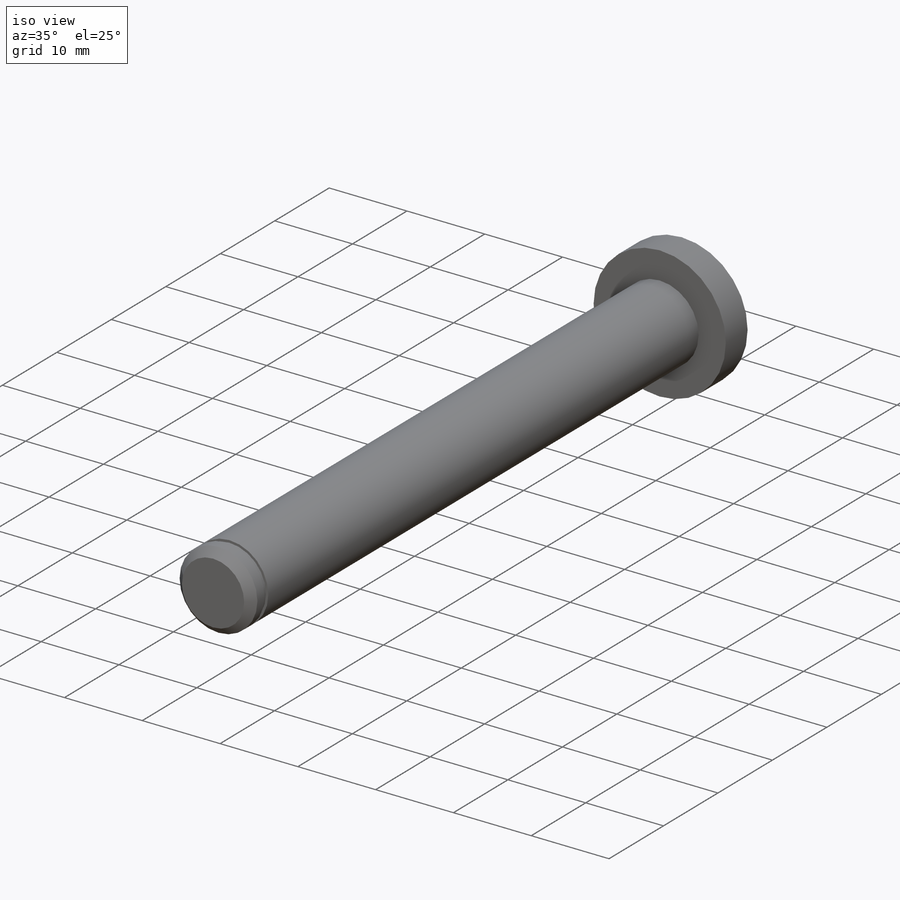
[diagram: iso view]
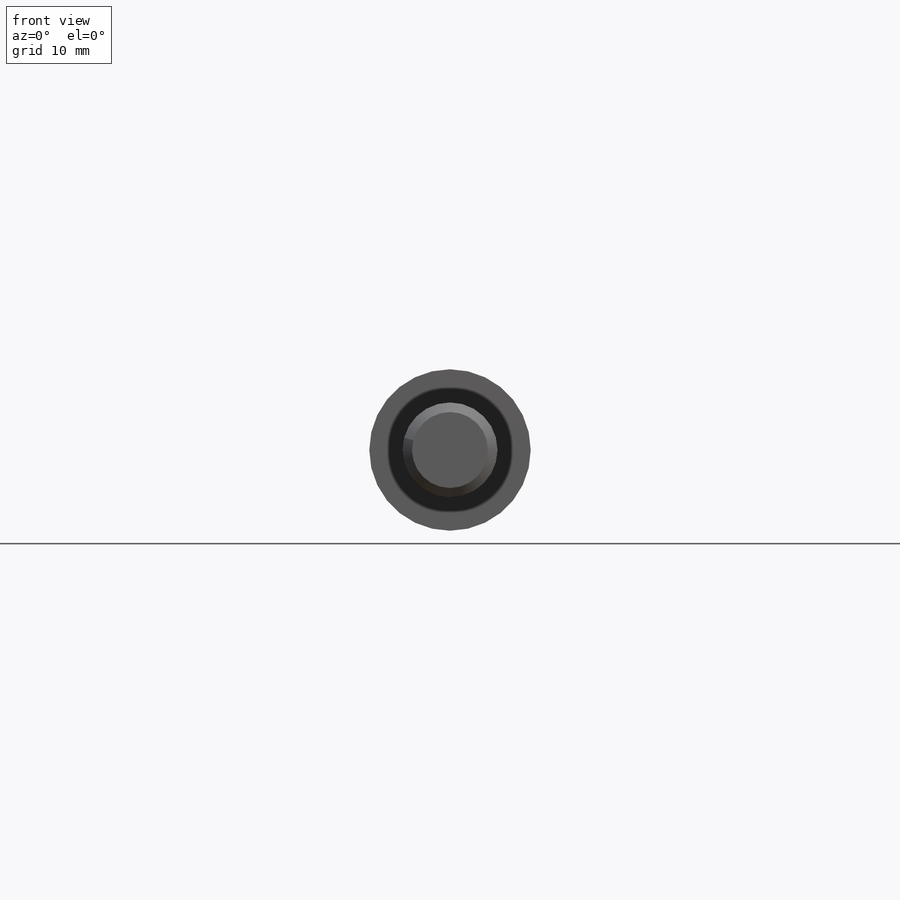
[diagram: front view]
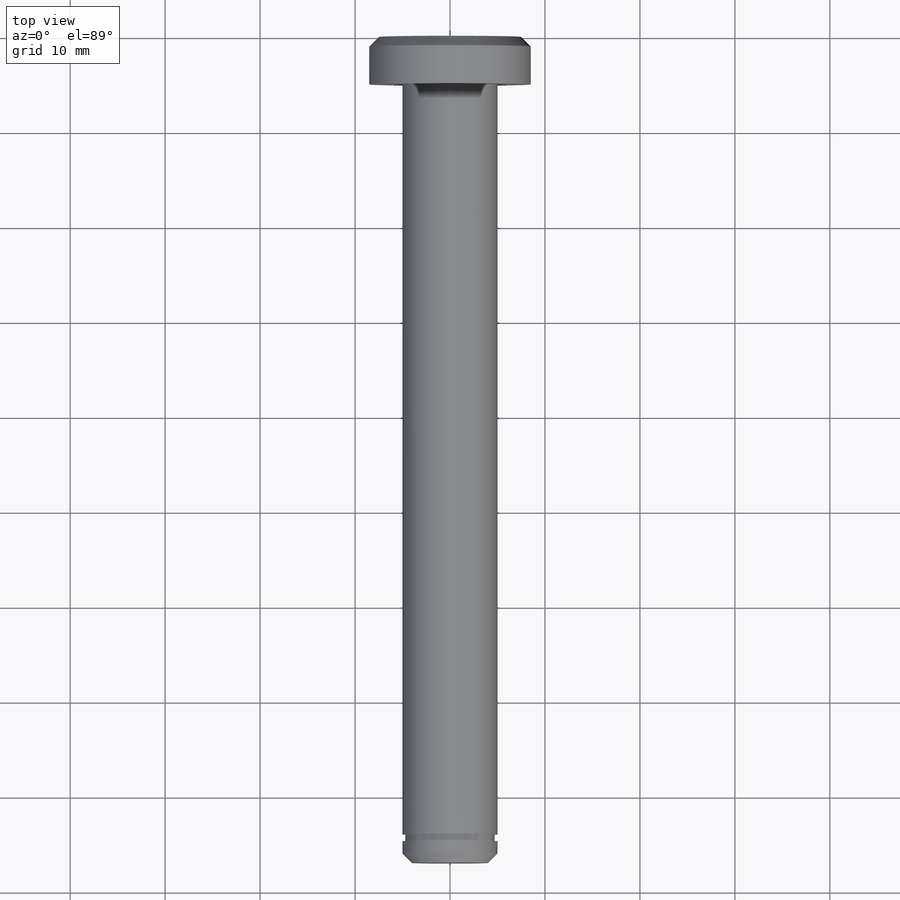
[diagram: top view]
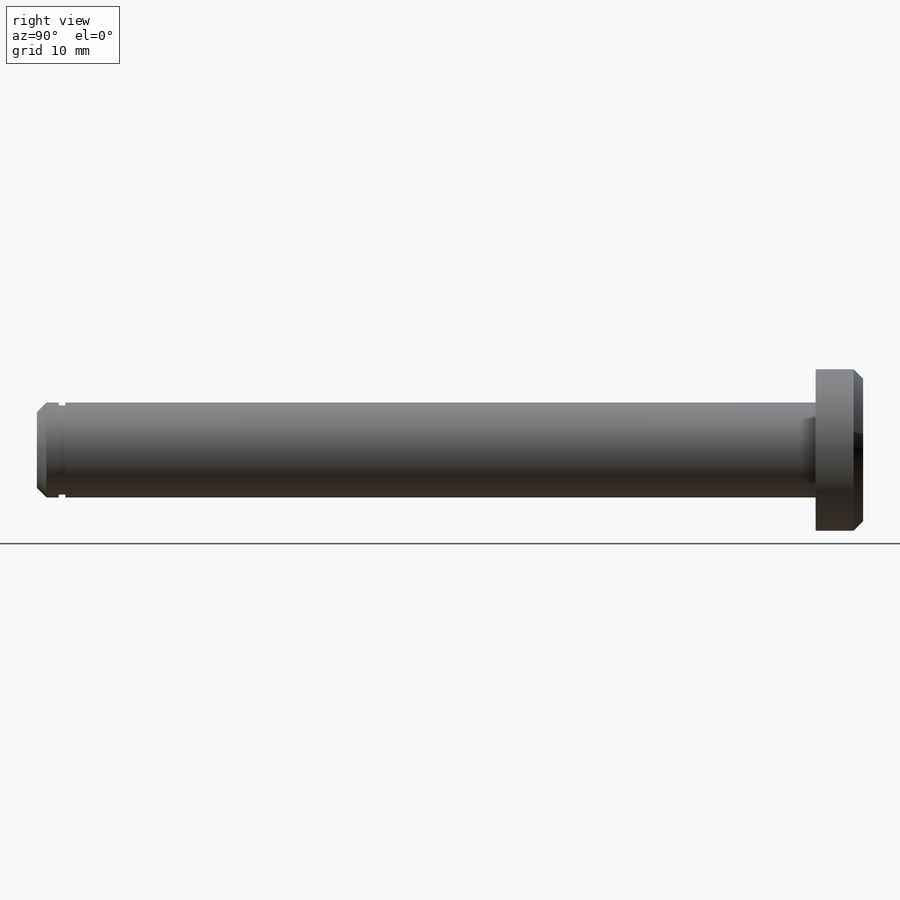
[diagram: right view]
SOLIDWORKS PART (.sldprt)
format: sldprt  version: not decoded by parser v0  size: 190,976 bytes
history: native  units: mm
features: sketch x3, extrude x2, material x1, chamfer x1, plane x1 (+16 scaffold rows collapsed)
feature tree (24):
  scaffold x16  (default folders/planes/origin — collapsed)
  material  "Material <not specified>"
  sketch  "Sketch1"  dims[D1=17.0mm]
  extrude  "Boss-Extrude1"  Depth=5mm
  sketch  "Sketch2"  dims[D1=10.0mm]
  extrude  "Boss-Extrude2"  Depth=82mm
  chamfer  "Chamfer1"  Distance=1mm Angle=45deg
  plane  "Plane1"  Offset=84mm
  sketch  "Sketch3"  dims[c1.D1=9.4mm c2.D1=0.7mm c2.D5=10.0mm c2.D6=10.0mm c2.D7=5.0mm]
decode coverage: 6 of 6 modeling features carry decoded parameters
note: suppression state not decoded; provenance and decode notes live in map.json
